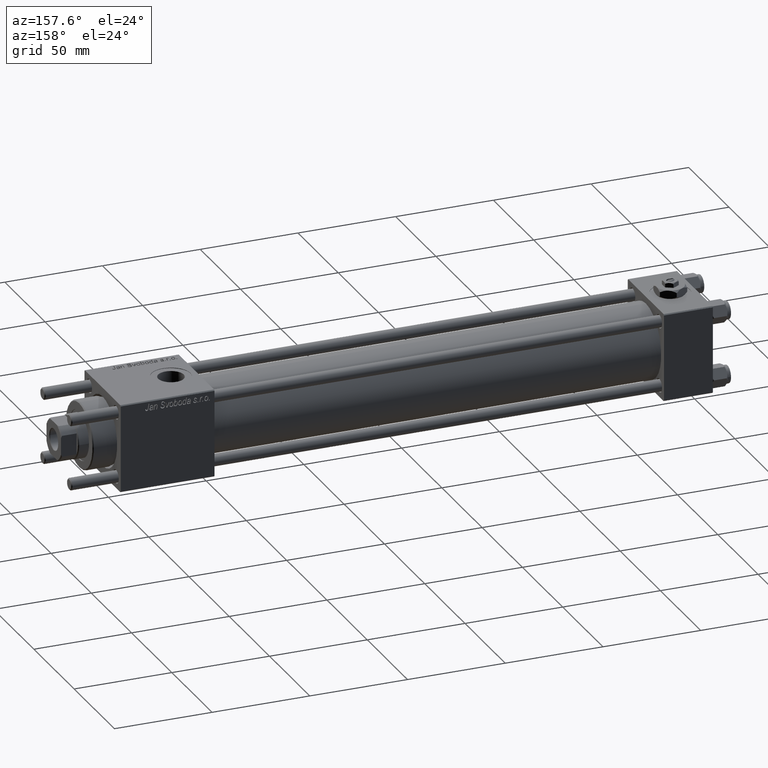
[diagram: clean part render]
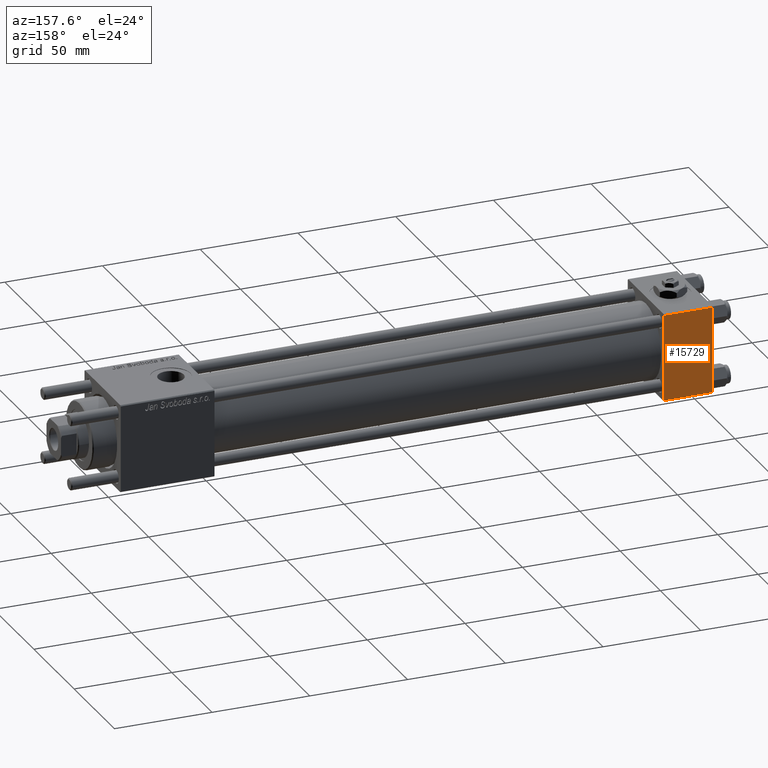
[diagram: same view with one face highlighted and labeled with its STEP entity id]
A machine part, auxiliary view. The second image highlights one B-rep face of the part: STEP entity #15729.
In plain terms, the highlighted planar face has unit normal (0, 1, 0).
Its self-contained STEP definition (entity closure, byte-faithful):
#302 = LINE ( 'NONE', #28772, #32609 ) ;
#2232 = CARTESIAN_POINT ( 'NONE',  ( 0.000000000000000000, 22.50000000000000000, 21.99999999999999645 ) ) ;
#4029 = DIRECTION ( 'NONE',  ( 1.000000000000000000, 0.000000000000000000, 0.000000000000000000 ) ) ;
#4621 = AXIS2_PLACEMENT_3D ( 'NONE', #20120, #57139, #39541 ) ;
#12977 = LINE ( 'NONE', #26334, #44377 ) ;
#13093 = VERTEX_POINT ( 'NONE', #21818 ) ;
#15568 = FACE_OUTER_BOUND ( 'NONE', #16432, .T. ) ;
#15729 = ADVANCED_FACE ( 'NONE', ( #15568 ), #24964, .T. ) ;
#16424 = ORIENTED_EDGE ( 'NONE', *, *, #58262, .T. ) ;
#16432 = EDGE_LOOP ( 'NONE', ( #27879, #16424, #48926, #52330 ) ) ;
#16725 = VERTEX_POINT ( 'NONE', #2232 ) ;
#17487 = VERTEX_POINT ( 'NONE', #23783 ) ;
#20120 = CARTESIAN_POINT ( 'NONE',  ( 25.00000000000000000, 22.50000000000000000, 22.50000000000000355 ) ) ;
#21188 = DIRECTION ( 'NONE',  ( 0.000000000000000000, 0.000000000000000000, -1.000000000000000000 ) ) ;
#21677 = EDGE_CURVE ( 'NONE', #36356, #17487, #12977, .T. ) ;
#21818 = CARTESIAN_POINT ( 'NONE',  ( 0.000000000000000000, 22.50000000000000000, -21.99999999999996803 ) ) ;
#23783 = CARTESIAN_POINT ( 'NONE',  ( 25.00000000000000000, 22.50000000000000000, -21.99999999999996803 ) ) ;
#24964 = PLANE ( 'NONE',  #4621 ) ;
#26334 = CARTESIAN_POINT ( 'NONE',  ( 25.00000000000000000, 22.50000000000000000, 22.50000000000000355 ) ) ;
#26763 = LINE ( 'NONE', #41035, #48055 ) ;
#27879 = ORIENTED_EDGE ( 'NONE', *, *, #21677, .T. ) ;
#28772 = CARTESIAN_POINT ( 'NONE',  ( 25.00000000000000000, 22.50000000000000000, -21.99999999999998224 ) ) ;
#29213 = VECTOR ( 'NONE', #59738, 1000.000000000000000 ) ;
#29329 = CARTESIAN_POINT ( 'NONE',  ( 25.00000000000000000, 22.50000000000000000, 21.99999999999999645 ) ) ;
#32609 = VECTOR ( 'NONE', #42148, 1000.000000000000000 ) ;
#36249 = EDGE_CURVE ( 'NONE', #16725, #13093, #49741, .T. ) ;
#36356 = VERTEX_POINT ( 'NONE', #29329 ) ;
#39541 = DIRECTION ( 'NONE',  ( 0.000000000000000000, -0.000000000000000000, 1.000000000000000000 ) ) ;
#40317 = CARTESIAN_POINT ( 'NONE',  ( 0.000000000000000000, 22.50000000000000000, 22.50000000000000355 ) ) ;
#41035 = CARTESIAN_POINT ( 'NONE',  ( 25.00000000000000000, 22.50000000000000000, 21.99999999999999645 ) ) ;
#42148 = DIRECTION ( 'NONE',  ( -1.000000000000000000, 0.000000000000000000, 0.000000000000000000 ) ) ;
#44377 = VECTOR ( 'NONE', #21188, 1000.000000000000000 ) ;
#48055 = VECTOR ( 'NONE', #4029, 1000.000000000000000 ) ;
#48926 = ORIENTED_EDGE ( 'NONE', *, *, #36249, .F. ) ;
#49741 = LINE ( 'NONE', #40317, #29213 ) ;
#52330 = ORIENTED_EDGE ( 'NONE', *, *, #57175, .T. ) ;
#57139 = DIRECTION ( 'NONE',  ( -0.000000000000000000, 1.000000000000000000, 0.000000000000000000 ) ) ;
#57175 = EDGE_CURVE ( 'NONE', #16725, #36356, #26763, .T. ) ;
#58262 = EDGE_CURVE ( 'NONE', #17487, #13093, #302, .T. ) ;
#59738 = DIRECTION ( 'NONE',  ( 0.000000000000000000, 0.000000000000000000, -1.000000000000000000 ) ) ;